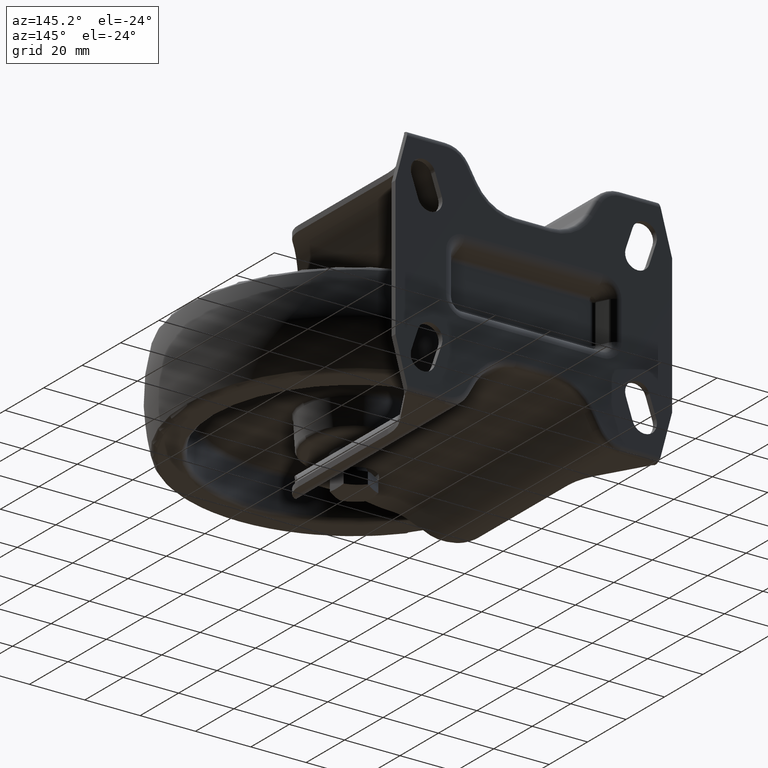
[diagram: clean part render]
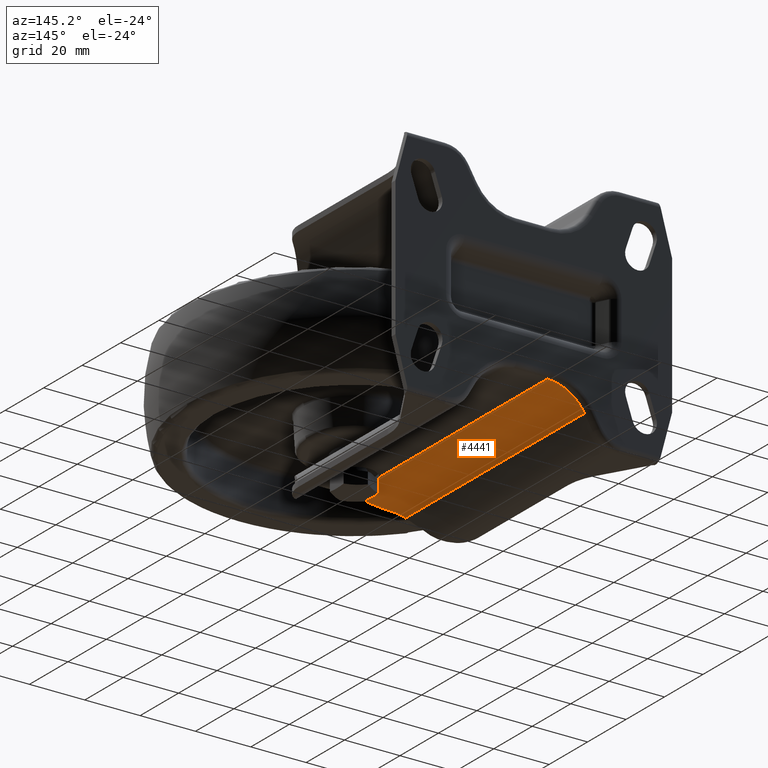
[diagram: same view with one face highlighted and labeled with its STEP entity id]
A machine part, auxiliary view. The second image highlights one B-rep face of the part: STEP entity #4441.
In plain terms, the highlighted cylindrical surface (partial cylindrical patch) has radius 15.5 mm, axis along (0, 1, 0).
Its self-contained STEP definition (entity closure, byte-faithful):
#31=B_SPLINE_CURVE_WITH_KNOTS('',3,(#7217,#7218,#7219,#7220,#7221,#7222,
#7223,#7224),.UNSPECIFIED.,.F.,.F.,(4,2,2,4),(-4.77654941947935,-4.36780120166337,
-3.95905298384739,-3.68846973763565),.UNSPECIFIED.);
#53=B_SPLINE_CURVE_WITH_KNOTS('',3,(#7795,#7796,#7797,#7798,#7799,#7800),
 .UNSPECIFIED.,.F.,.F.,(4,2,4),(-2.9125659393241,-2.78570397245069,-2.50178692306859),
 .UNSPECIFIED.);
#56=B_SPLINE_CURVE_WITH_KNOTS('',3,(#7816,#7817,#7818,#7819,#7820,#7821),
 .UNSPECIFIED.,.F.,.F.,(4,2,4),(-2.50178692306859,-2.2178698736865,-2.09100790681369),
 .UNSPECIFIED.);
#77=ELLIPSE('',#4781,30.9999999999999,15.5);
#536=FACE_OUTER_BOUND('',#799,.T.);
#799=EDGE_LOOP('',(#3737,#3738,#3739,#3740,#3741,#3742,#3743,#3744,#3745));
#1026=LINE('',#7412,#1300);
#1087=LINE('',#7861,#1361);
#1088=LINE('',#7865,#1362);
#1300=VECTOR('',#5876,7.43226028044293);
#1361=VECTOR('',#6153,89.4322602804429);
#1362=VECTOR('',#6158,95.0849364905389);
#1522=CIRCLE('',#4784,15.5);
#1584=CIRCLE('',#4946,15.5);
#1869=VERTEX_POINT('',#7210);
#1870=VERTEX_POINT('',#7212);
#1871=VERTEX_POINT('',#7216);
#1872=VERTEX_POINT('',#7227);
#1908=VERTEX_POINT('',#7408);
#1988=VERTEX_POINT('',#7793);
#1989=VERTEX_POINT('',#7794);
#1997=VERTEX_POINT('',#7859);
#1998=VERTEX_POINT('',#7863);
#2383=EDGE_CURVE('',#1870,#1869,#77,.T.);
#2385=EDGE_CURVE('',#1871,#1870,#31,.T.);
#2387=EDGE_CURVE('',#1872,#1871,#1522,.T.);
#2457=EDGE_CURVE('',#1908,#1872,#1026,.T.);
#2583=EDGE_CURVE('',#1988,#1989,#53,.T.);
#2587=EDGE_CURVE('',#1989,#1908,#56,.T.);
#2598=EDGE_CURVE('',#1997,#1988,#1087,.T.);
#2599=EDGE_CURVE('',#1997,#1998,#1584,.T.);
#2600=EDGE_CURVE('',#1998,#1869,#1088,.T.);
#3737=ORIENTED_EDGE('',*,*,#2599,.F.);
#3738=ORIENTED_EDGE('',*,*,#2598,.T.);
#3739=ORIENTED_EDGE('',*,*,#2583,.T.);
#3740=ORIENTED_EDGE('',*,*,#2587,.T.);
#3741=ORIENTED_EDGE('',*,*,#2457,.T.);
#3742=ORIENTED_EDGE('',*,*,#2387,.T.);
#3743=ORIENTED_EDGE('',*,*,#2385,.T.);
#3744=ORIENTED_EDGE('',*,*,#2383,.T.);
#3745=ORIENTED_EDGE('',*,*,#2600,.F.);
#3972=CYLINDRICAL_SURFACE('',#4945,15.5);
#4441=ADVANCED_FACE('',(#536),#3972,.F.);
#4781=AXIS2_PLACEMENT_3D('',#7213,#5724,#5725);
#4784=AXIS2_PLACEMENT_3D('',#7228,#5732,#5733);
#4945=AXIS2_PLACEMENT_3D('',#7862,#6154,#6155);
#4946=AXIS2_PLACEMENT_3D('',#7864,#6156,#6157);
#5724=DIRECTION('center_axis',(-0.866025403784439,-0.5,0.));
#5725=DIRECTION('ref_axis',(-0.5,0.866025403784439,2.29207334116162E-16));
#5732=DIRECTION('center_axis',(0.,-1.,0.));
#5733=DIRECTION('ref_axis',(0.,0.,1.));
#5876=DIRECTION('',(0.,-1.,0.));
#6153=DIRECTION('',(0.,-1.,0.));
#6154=DIRECTION('center_axis',(0.,1.,0.));
#6155=DIRECTION('ref_axis',(0.,0.,1.));
#6156=DIRECTION('center_axis',(0.,-1.,0.));
#6157=DIRECTION('ref_axis',(-0.5,0.,0.866025403784439));
#6158=DIRECTION('',(0.,-1.,0.));
#7210=CARTESIAN_POINT('',(-19.7244645862196,-1.58493649053891,-32.25));
#7212=CARTESIAN_POINT('',(-16.8867513459481,-6.5,-28.677748988711));
#7213=CARTESIAN_POINT('Origin',(-6.30107082756081,-24.8349364905389,-40.));
#7216=CARTESIAN_POINT('',(-8.22649730810373,-11.5,-24.6200541981441));
#7217=CARTESIAN_POINT('Ctrl Pts',(-8.22649730810372,-11.5,-24.6200541981441));
#7218=CARTESIAN_POINT('Ctrl Pts',(-9.57843826221446,-11.5,-24.7893046588877));
#7219=CARTESIAN_POINT('Ctrl Pts',(-10.9642882247785,-11.211757112255,-25.1578153664701));
#7220=CARTESIAN_POINT('Ctrl Pts',(-13.4359983416072,-10.1414592450661,-26.175064501699));
#7221=CARTESIAN_POINT('Ctrl Pts',(-14.5247143898839,-9.36204192288158,-26.8196309002583));
#7222=CARTESIAN_POINT('Ctrl Pts',(-15.9381742058299,-7.91702964756548,-27.8402930849768));
#7223=CARTESIAN_POINT('Ctrl Pts',(-16.4568797363806,-7.24455946850234,-28.2758427318836));
#7224=CARTESIAN_POINT('Ctrl Pts',(-16.886751345948,-6.5000000000001,-28.6777489887109));
#7227=CARTESIAN_POINT('',(-6.3010708275608,-11.5,-24.5));
#7228=CARTESIAN_POINT('Origin',(-6.30107082756081,-11.5,-40.));
#7408=CARTESIAN_POINT('',(-6.3010708275608,-4.06773971955707,-24.5));
#7412=CARTESIAN_POINT('',(-6.3010708275608,-4.06773971955707,-24.5));
#7793=CARTESIAN_POINT('',(-6.3010708275608,4.06773971955707,-24.5));
#7794=CARTESIAN_POINT('',(-7.5,-5.14738533914649E-16,-24.546438312173));
#7795=CARTESIAN_POINT('Ctrl Pts',(-6.30107082756445,4.06773971955142,-24.5));
#7796=CARTESIAN_POINT('Ctrl Pts',(-6.54185510748095,3.69475646434813,-24.5000000000001));
#7797=CARTESIAN_POINT('Ctrl Pts',(-6.75185354055833,3.2960112952451,-24.5055961077706));
#7798=CARTESIAN_POINT('Ctrl Pts',(-7.30996709486161,1.95504501860145,-24.5280520662528));
#7799=CARTESIAN_POINT('Ctrl Pts',(-7.5,0.946390164606995,-24.546438312173));
#7800=CARTESIAN_POINT('Ctrl Pts',(-7.5,-1.38777878078145E-16,-24.546438312173));
#7816=CARTESIAN_POINT('Ctrl Pts',(-7.5,-1.38777878078145E-16,-24.546438312173));
#7817=CARTESIAN_POINT('Ctrl Pts',(-7.5,-0.946390164606994,-24.546438312173));
#7818=CARTESIAN_POINT('Ctrl Pts',(-7.30996709486161,-1.95504501860144,-24.5280520662528));
#7819=CARTESIAN_POINT('Ctrl Pts',(-6.75185354055915,-3.29601129524313,-24.5055961077706));
#7820=CARTESIAN_POINT('Ctrl Pts',(-6.54185510748296,-3.69475646434433,-24.5000000000001));
#7821=CARTESIAN_POINT('Ctrl Pts',(-6.30107082756789,-4.06773971954609,-24.5));
#7859=CARTESIAN_POINT('',(-6.3010708275608,91.5,-24.5));
#7861=CARTESIAN_POINT('',(-6.3010708275608,93.5,-24.5));
#7862=CARTESIAN_POINT('Origin',(-6.30107082756081,93.5,-40.));
#7863=CARTESIAN_POINT('',(-19.7244645862196,91.5,-32.25));
#7864=CARTESIAN_POINT('Origin',(-6.30107082756081,91.5,-40.));
#7865=CARTESIAN_POINT('',(-19.7244645862196,93.5,-32.25));